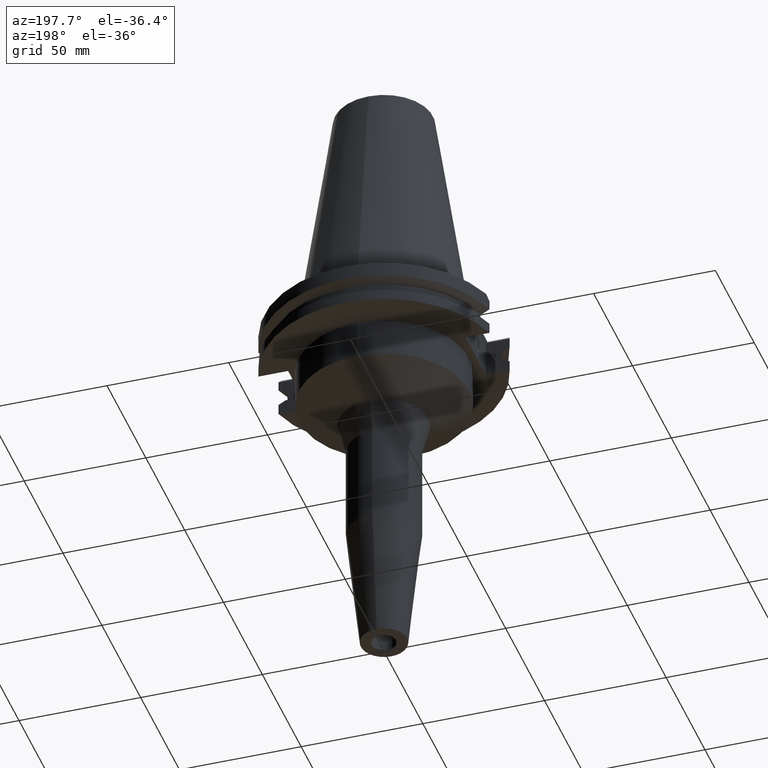
[diagram: clean part render]
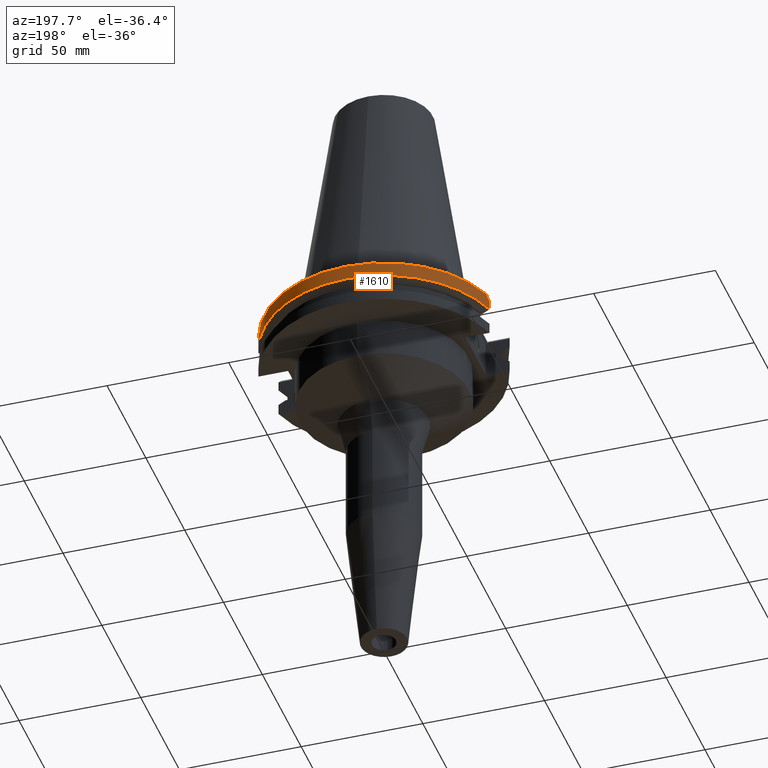
[diagram: same view with one face highlighted and labeled with its STEP entity id]
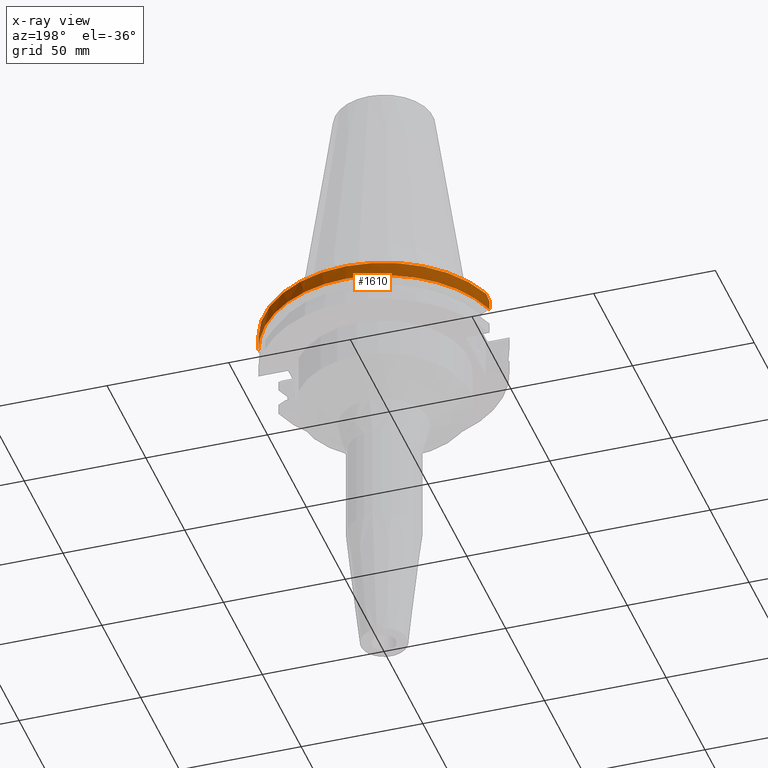
[diagram: x-ray of the same camera — body ghosted, the highlighted face saturated]
A machine part, auxiliary view. The second image highlights one B-rep face of the part: STEP entity #1610.
The next image is the same camera in x-ray: the body ghosted, the highlighted face saturated — about 0% of this face is hidden behind the body in this view.
In plain terms, the highlighted cylindrical surface (partial cylindrical patch) has radius 49.2125 mm, axis along (0, 0, -1).
Its self-contained STEP definition (entity closure, byte-faithful):
#138=CARTESIAN_POINT('',(0.E0,1.398301715266E-14,-1.5E0));
#139=DIRECTION('',(0.E0,0.E0,-1.E0));
#140=DIRECTION('',(-9.514024724200E-1,3.079502159004E-1,0.E0));
#141=AXIS2_PLACEMENT_3D('',#138,#139,#140);
#146=CARTESIAN_POINT('',(0.E0,1.398301715266E-14,-1.5E0));
#147=DIRECTION('',(0.E0,0.E0,-1.E0));
#148=DIRECTION('',(0.E0,1.E0,0.E0));
#149=AXIS2_PLACEMENT_3D('',#146,#147,#148);
#288=DIRECTION('',(-2.640858665149E-13,-3.597031630117E-14,1.E0));
#289=VECTOR('',#288,3.901333230925E0);
#290=CARTESIAN_POINT('',(4.747671146204E1,1.2955E1,-7.601333230925E0));
#291=LINE('',#290,#289);
#295=CARTESIAN_POINT('',(4.747671146204E1,1.2955E1,-3.699999999999E0));
#296=CARTESIAN_POINT('',(4.727588310257E1,1.369098379593E1,-2.964016204073E0));
#297=CARTESIAN_POINT('',(4.705739607797E1,1.442433483212E1,-2.230665167880E0));
#298=CARTESIAN_POINT('',(4.682089417397E1,1.5155E1,-1.5E0));
#303=CARTESIAN_POINT('',(-4.682089417397E1,1.5155E1,-1.5E0));
#304=CARTESIAN_POINT('',(-4.705739607797E1,1.442433483212E1,-2.230665167880E0));
#305=CARTESIAN_POINT('',(-4.727588310257E1,1.369098379593E1,-2.964016204073E0));
#306=CARTESIAN_POINT('',(-4.747671146204E1,1.2955E1,-3.699999999999E0));
#311=DIRECTION('',(-2.622645846769E-13,3.460435492264E-14,-1.E0));
#312=VECTOR('',#311,3.901333230925E0);
#313=CARTESIAN_POINT('',(-4.747671146204E1,1.2955E1,-3.7E0));
#314=LINE('',#313,#312);
#530=CARTESIAN_POINT('',(4.747671146204E1,1.2955E1,-7.601333230925E0));
#535=CARTESIAN_POINT('',(0.E0,0.E0,-7.601333230926E0));
#536=DIRECTION('',(0.E0,0.E0,1.E0));
#537=DIRECTION('',(9.647287063661E-1,2.632461264923E-1,0.E0));
#538=AXIS2_PLACEMENT_3D('',#535,#536,#537);
#543=CARTESIAN_POINT('',(0.E0,0.E0,-7.601333230926E0));
#544=DIRECTION('',(0.E0,0.E0,1.E0));
#545=DIRECTION('',(0.E0,1.E0,0.E0));
#546=AXIS2_PLACEMENT_3D('',#543,#544,#545);
#551=CARTESIAN_POINT('',(-4.747671146204E1,1.2955E1,-7.601333230925E0));
#1340=VERTEX_POINT('',#551);
#1341=CARTESIAN_POINT('',(-4.747671146204E1,1.2955E1,-3.7E0));
#1342=VERTEX_POINT('',#1341);
#1368=VERTEX_POINT('',#530);
#1369=CARTESIAN_POINT('',(0.E0,4.92125E1,-7.601333230926E0));
#1370=VERTEX_POINT('',#1369);
#1375=CARTESIAN_POINT('',(4.747671146204E1,1.2955E1,-3.7E0));
#1376=VERTEX_POINT('',#1375);
#1377=VERTEX_POINT('',#298);
#1378=CARTESIAN_POINT('',(0.E0,4.92125E1,-1.5E0));
#1379=VERTEX_POINT('',#1378);
#1380=CARTESIAN_POINT('',(-4.682089417397E1,1.5155E1,-1.5E0));
#1381=VERTEX_POINT('',#1380);
#1591=CARTESIAN_POINT('',(0.E0,1.398301715266E-14,1.1418E2));
#1592=DIRECTION('',(0.E0,0.E0,-1.E0));
#1593=DIRECTION('',(0.E0,-1.E0,0.E0));
#1594=AXIS2_PLACEMENT_3D('',#1591,#1592,#1593);
#1595=CYLINDRICAL_SURFACE('',#1594,4.92125E1);
#1596=ORIENTED_EDGE('',*,*,#1561,.T.);
#1597=ORIENTED_EDGE('',*,*,#1583,.T.);
#1598=ORIENTED_EDGE('',*,*,#1489,.F.);
#1599=ORIENTED_EDGE('',*,*,#1487,.F.);
#1601=ORIENTED_EDGE('',*,*,#1600,.T.);
#1603=ORIENTED_EDGE('',*,*,#1602,.T.);
#1605=ORIENTED_EDGE('',*,*,#1604,.F.);
#1607=ORIENTED_EDGE('',*,*,#1606,.F.);
#1608=EDGE_LOOP('',(#1596,#1597,#1598,#1599,#1601,#1603,#1605,#1607));
#1609=FACE_OUTER_BOUND('',#1608,.F.);
#142=CIRCLE('',#141,4.92125E1);
#150=CIRCLE('',#149,4.92125E1);
#299=B_SPLINE_CURVE_WITH_KNOTS('',3,(#295,#296,#297,#298),.UNSPECIFIED.,.F.,.F.,
(4,4),(0.E0,1.E0),.UNSPECIFIED.);
#307=B_SPLINE_CURVE_WITH_KNOTS('',3,(#303,#304,#305,#306),.UNSPECIFIED.,.F.,.F.,
(4,4),(0.E0,1.E0),.UNSPECIFIED.);
#539=CIRCLE('',#538,4.92125E1);
#547=CIRCLE('',#546,4.92125E1);
#1487=EDGE_CURVE('',#1381,#1379,#142,.T.);
#1489=EDGE_CURVE('',#1379,#1377,#150,.T.);
#1561=EDGE_CURVE('',#1368,#1376,#291,.T.);
#1583=EDGE_CURVE('',#1376,#1377,#299,.T.);
#1600=EDGE_CURVE('',#1381,#1342,#307,.T.);
#1602=EDGE_CURVE('',#1342,#1340,#314,.T.);
#1604=EDGE_CURVE('',#1370,#1340,#547,.T.);
#1606=EDGE_CURVE('',#1368,#1370,#539,.T.);
#1610=ADVANCED_FACE('',(#1609),#1595,.T.);